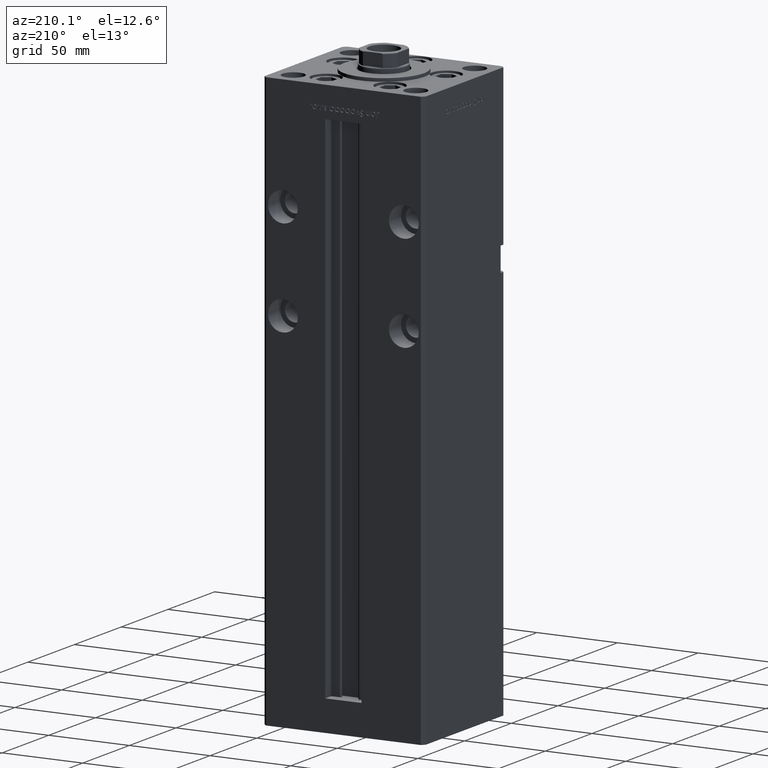
[diagram: clean part render]
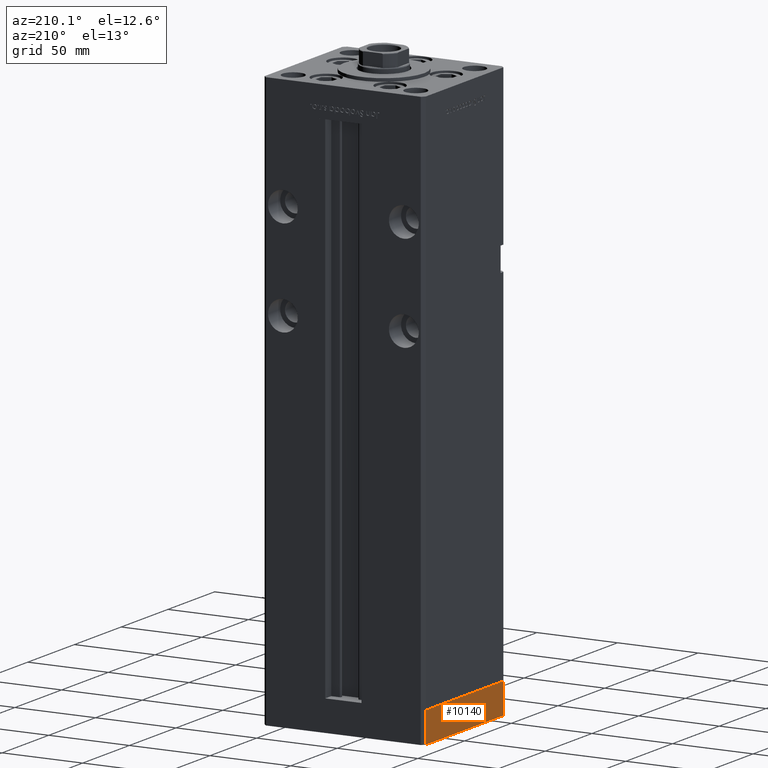
[diagram: same view with one face highlighted and labeled with its STEP entity id]
A machine part, auxiliary view. The second image highlights one B-rep face of the part: STEP entity #10140.
In plain terms, the highlighted planar face has unit normal (-1, -0, 0).
Its self-contained STEP definition (entity closure, byte-faithful):
#992 = LINE ( 'NONE', #14433, #23090 ) ;
#1170 = DIRECTION ( 'NONE',  ( -1.003213576468515193E-15, 1.000000000000000000, 0.000000000000000000 ) ) ;
#1464 = VERTEX_POINT ( 'NONE', #43634 ) ;
#1569 = VERTEX_POINT ( 'NONE', #15404 ) ;
#3383 = PLANE ( 'NONE',  #7747 ) ;
#4382 = EDGE_CURVE ( 'NONE', #49034, #26983, #13997, .T. ) ;
#5479 = LINE ( 'NONE', #9239, #32668 ) ;
#6743 = EDGE_CURVE ( 'NONE', #49034, #1464, #992, .T. ) ;
#6858 = EDGE_LOOP ( 'NONE', ( #36437, #14993, #21686, #30468 ) ) ;
#7747 = AXIS2_PLACEMENT_3D ( 'NONE', #36188, #53081, #16271 ) ;
#9239 = CARTESIAN_POINT ( 'NONE',  ( 50.00000000000000000, -41.49999999999999289, 0.000000000000000000 ) ) ;
#10140 = ADVANCED_FACE ( 'NONE', ( #40220 ), #3383, .T. ) ;
#13366 = DIRECTION ( 'NONE',  ( 0.000000000000000000, 0.000000000000000000, 1.000000000000000000 ) ) ;
#13997 = LINE ( 'NONE', #49994, #21332 ) ;
#14433 = CARTESIAN_POINT ( 'NONE',  ( 50.00000000000000000, -41.49999999999999289, -19.00000000000000000 ) ) ;
#14993 = ORIENTED_EDGE ( 'NONE', *, *, #6743, .F. ) ;
#15404 = CARTESIAN_POINT ( 'NONE',  ( 49.99999999999992184, 41.49999999999998579, 0.000000000000000000 ) ) ;
#15872 = EDGE_CURVE ( 'NONE', #1464, #1569, #5479, .T. ) ;
#16271 = DIRECTION ( 'NONE',  ( -1.003213576468515193E-15, 1.000000000000000000, 0.000000000000000000 ) ) ;
#16575 = CARTESIAN_POINT ( 'NONE',  ( 50.00000000000000000, -41.49999999999999289, -19.00000000000000000 ) ) ;
#21332 = VECTOR ( 'NONE', #34691, 1000.000000000000000 ) ;
#21424 = LINE ( 'NONE', #49889, #33903 ) ;
#21686 = ORIENTED_EDGE ( 'NONE', *, *, #4382, .T. ) ;
#21696 = DIRECTION ( 'NONE',  ( 0.000000000000000000, 0.000000000000000000, 1.000000000000000000 ) ) ;
#23090 = VECTOR ( 'NONE', #13366, 1000.000000000000000 ) ;
#26983 = VERTEX_POINT ( 'NONE', #42090 ) ;
#30468 = ORIENTED_EDGE ( 'NONE', *, *, #44056, .T. ) ;
#32668 = VECTOR ( 'NONE', #1170, 1000.000000000000000 ) ;
#33903 = VECTOR ( 'NONE', #21696, 1000.000000000000000 ) ;
#34691 = DIRECTION ( 'NONE',  ( -1.003213576468515193E-15, 1.000000000000000000, 0.000000000000000000 ) ) ;
#36188 = CARTESIAN_POINT ( 'NONE',  ( 50.00000000000000000, -41.49999999999999289, -19.00000000000000000 ) ) ;
#36437 = ORIENTED_EDGE ( 'NONE', *, *, #15872, .F. ) ;
#40220 = FACE_OUTER_BOUND ( 'NONE', #6858, .T. ) ;
#42090 = CARTESIAN_POINT ( 'NONE',  ( 49.99999999999992184, 41.49999999999998579, -19.00000000000000000 ) ) ;
#43634 = CARTESIAN_POINT ( 'NONE',  ( 50.00000000000000000, -41.49999999999999289, 0.000000000000000000 ) ) ;
#44056 = EDGE_CURVE ( 'NONE', #26983, #1569, #21424, .T. ) ;
#49034 = VERTEX_POINT ( 'NONE', #16575 ) ;
#49889 = CARTESIAN_POINT ( 'NONE',  ( 49.99999999999992184, 41.49999999999998579, -19.00000000000000000 ) ) ;
#49994 = CARTESIAN_POINT ( 'NONE',  ( 50.00000000000000000, -41.49999999999999289, -19.00000000000000000 ) ) ;
#53081 = DIRECTION ( 'NONE',  ( 1.000000000000000000, 1.003213576468515193E-15, -0.000000000000000000 ) ) ;